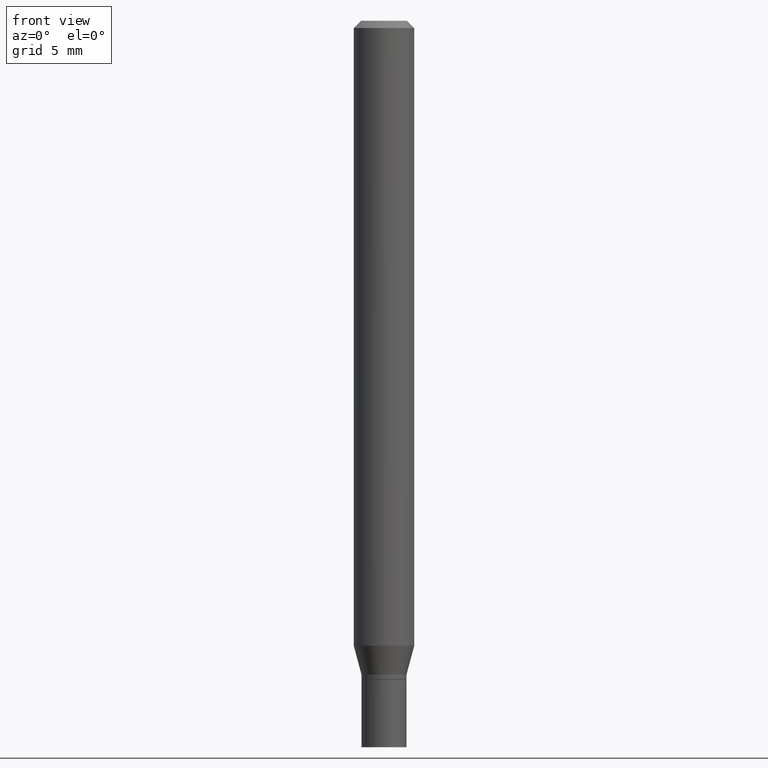
[diagram: clean part render]
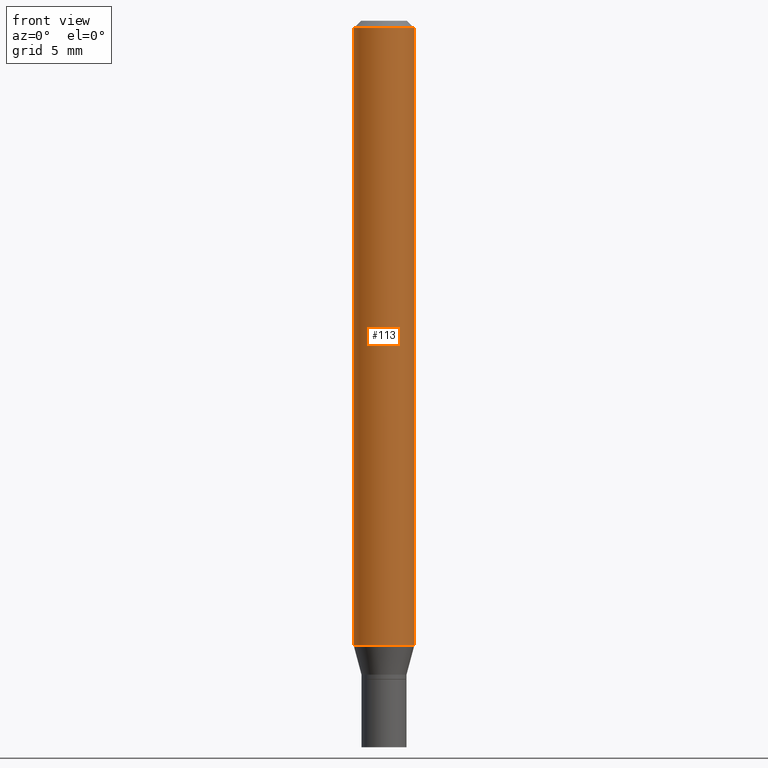
[diagram: same view with one face highlighted and labeled with its STEP entity id]
A machine part, front view. The second image highlights one B-rep face of the part: STEP entity #113.
In plain terms, the highlighted cylindrical surface (edge-blend (fillet) strip) has radius 1.5875 mm, axis along (-0, 0, 1).
Its self-contained STEP definition (entity closure, byte-faithful):
#6 = CARTESIAN_POINT ( 'NONE',  ( 3.155357067021810605E-29, -4.505013635434386600E-15, -1.290287187078897890 ) ) ;
#13 = VERTEX_POINT ( 'NONE', #392 ) ;
#36 = LINE ( 'NONE', #143, #282 ) ;
#44 = VECTOR ( 'NONE', #379, 39.37007874015748143 ) ;
#48 = ORIENTED_EDGE ( 'NONE', *, *, #218, .F. ) ;
#74 = DIRECTION ( 'NONE',  ( -2.445468806185136597E-29, 3.491481338843145583E-15, 1.000000000000000000 ) ) ;
#75 = ORIENTED_EDGE ( 'NONE', *, *, #204, .F. ) ;
#86 = EDGE_LOOP ( 'NONE', ( #75, #446, #311, #48 ) ) ;
#104 = CARTESIAN_POINT ( 'NONE',  ( -0.06250000000000000000, -1.834603717908454421E-15, -0.01499999999999999944 ) ) ;
#105 = DIRECTION ( 'NONE',  ( 1.000000000000000000, -6.982962677686266711E-15, 0.000000000000000000 ) ) ;
#113 = ADVANCED_FACE ( 'NONE', ( #271 ), #233, .T. ) ;
#132 = VERTEX_POINT ( 'NONE', #104 ) ;
#138 = DIRECTION ( 'NONE',  ( -2.445468806185136877E-29, 3.491481338843145188E-15, 1.000000000000000000 ) ) ;
#143 = CARTESIAN_POINT ( 'NONE',  ( -0.06250000000000000000, 4.440892098500626162E-16, -3.074334431409316114E-30 ) ) ;
#144 = CARTESIAN_POINT ( 'NONE',  ( 0.06250000000000000000, -4.888073874380388472E-16, -0.01499999999999999944 ) ) ;
#145 = VERTEX_POINT ( 'NONE', #304 ) ;
#170 = AXIS2_PLACEMENT_3D ( 'NONE', #312, #247, #105 ) ;
#204 = EDGE_CURVE ( 'NONE', #13, #132, #36, .T. ) ;
#207 = EDGE_CURVE ( 'NONE', #13, #145, #322, .T. ) ;
#215 = AXIS2_PLACEMENT_3D ( 'NONE', #294, #456, #263 ) ;
#218 = EDGE_CURVE ( 'NONE', #132, #344, #274, .T. ) ;
#225 = CARTESIAN_POINT ( 'NONE',  ( 0.06250000000000000000, -4.364351673553916694E-16, 3.047610484872459871E-30 ) ) ;
#232 = LINE ( 'NONE', #225, #44 ) ;
#233 = CYLINDRICAL_SURFACE ( 'NONE', #215, 0.06250000000000000000 ) ;
#247 = DIRECTION ( 'NONE',  ( -2.445468806185136597E-29, 3.491481338843145583E-15, 1.000000000000000000 ) ) ;
#263 = DIRECTION ( 'NONE',  ( 1.000000000000000000, -6.982962677686266711E-15, 4.876176775795935793E-29 ) ) ;
#271 = FACE_OUTER_BOUND ( 'NONE', #86, .T. ) ;
#273 = EDGE_CURVE ( 'NONE', #145, #344, #232, .T. ) ;
#274 = CIRCLE ( 'NONE', #170, 0.06250000000000000000 ) ;
#282 = VECTOR ( 'NONE', #138, 39.37007874015748143 ) ;
#294 = CARTESIAN_POINT ( 'NONE',  ( 0.000000000000000000, 0.000000000000000000, 0.000000000000000000 ) ) ;
#304 = CARTESIAN_POINT ( 'NONE',  ( 0.06250000000000000000, -4.941448802789779058E-15, -1.290287187078897890 ) ) ;
#311 = ORIENTED_EDGE ( 'NONE', *, *, #273, .T. ) ;
#312 = CARTESIAN_POINT ( 'NONE',  ( 3.668203209277705088E-31, -5.237222008264718399E-17, -0.01499999999999999944 ) ) ;
#322 = CIRCLE ( 'NONE', #422, 0.06250000000000000000 ) ;
#344 = VERTEX_POINT ( 'NONE', #144 ) ;
#379 = DIRECTION ( 'NONE',  ( -2.445468806185136877E-29, 3.491481338843145188E-15, 1.000000000000000000 ) ) ;
#392 = CARTESIAN_POINT ( 'NONE',  ( -0.06250000000000000000, -4.060924425584323984E-15, -1.290287187078897890 ) ) ;
#422 = AXIS2_PLACEMENT_3D ( 'NONE', #6, #74, #440 ) ;
#440 = DIRECTION ( 'NONE',  ( 1.000000000000000000, -6.982962677686262766E-15, 0.000000000000000000 ) ) ;
#446 = ORIENTED_EDGE ( 'NONE', *, *, #207, .T. ) ;
#456 = DIRECTION ( 'NONE',  ( -2.445468806185136597E-29, 3.491481338843145583E-15, 1.000000000000000000 ) ) ;